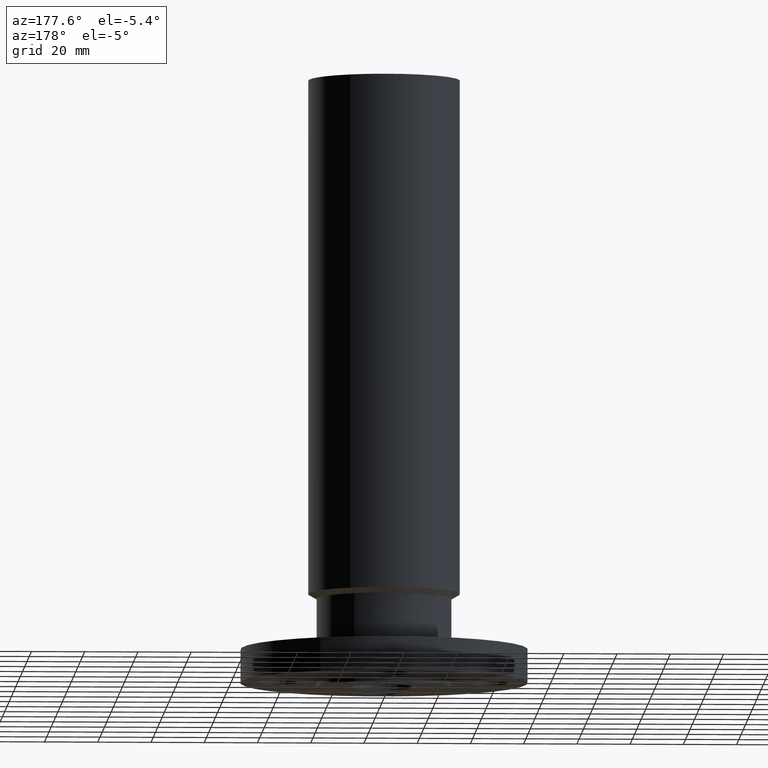
[diagram: clean part render]
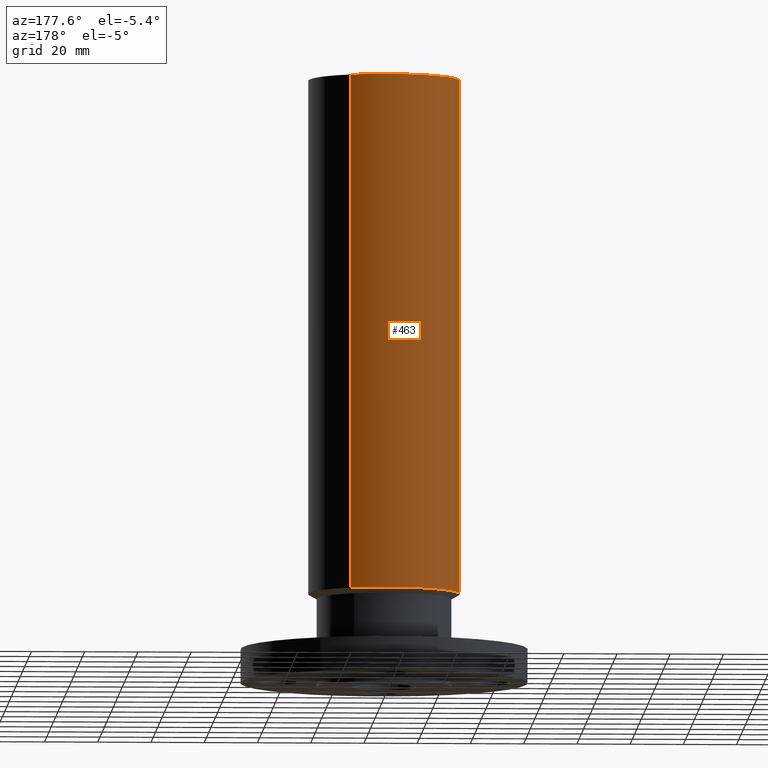
[diagram: same view with one face highlighted and labeled with its STEP entity id]
A machine part, auxiliary view. The second image highlights one B-rep face of the part: STEP entity #463.
In plain terms, the highlighted cylindrical surface (partial cylindrical patch) has radius 28.575 mm, axis along (0, 0, -1).
Its self-contained STEP definition (entity closure, byte-faithful):
#411=AXIS2_PLACEMENT_3D('Circle Axis2P3D',#409,#410,$) ;
#424=AXIS2_PLACEMENT_3D('Cylinder Axis2P3D',#421,#422,#423) ;
#454=AXIS2_PLACEMENT_3D('Circle Axis2P3D',#452,#453,$) ;
#387=CARTESIAN_POINT('Vertex',(0.539353730932,0.987280382131,1.31966878365)) ;
#394=CARTESIAN_POINT('Vertex',(-0.539353730932,-0.987280382131,1.31966878365)) ;
#409=CARTESIAN_POINT('Axis2P3D Location',(0.,0.,1.31966878365)) ;
#421=CARTESIAN_POINT('Axis2P3D Location',(0.,0.,4.43750000002)) ;
#426=CARTESIAN_POINT('Line Origine',(0.539353730932,0.987280382131,5.12858439184)) ;
#430=CARTESIAN_POINT('Vertex',(0.539353730932,0.987280382131,8.93750000004)) ;
#437=CARTESIAN_POINT('Vertex',(-0.539353730932,-0.987280382131,8.93750000004)) ;
#440=CARTESIAN_POINT('Line Origine',(-0.539353730932,-0.987280382131,5.12858439184)) ;
#452=CARTESIAN_POINT('Axis2P3D Location',(0.,0.,8.93750000004)) ;
#410=DIRECTION('Axis2P3D Direction',(-0.,0.,0.0393700787402)) ;
#422=DIRECTION('Axis2P3D Direction',(0.,0.,-0.0393700787402)) ;
#423=DIRECTION('Axis2P3D XDirection',(-0.0188750212049,-0.0345504945626,0.)) ;
#427=DIRECTION('Vector Direction',(0.,0.,-0.0393700787402)) ;
#441=DIRECTION('Vector Direction',(0.,0.,-0.0393700787402)) ;
#453=DIRECTION('Axis2P3D Direction',(0.,0.,-0.0393700787402)) ;
#428=VECTOR('Line Direction',#427,0.0393700787402) ;
#442=VECTOR('Line Direction',#441,0.0393700787402) ;
#458=ORIENTED_EDGE('',*,*,#413,.F.) ;
#459=ORIENTED_EDGE('',*,*,#444,.T.) ;
#460=ORIENTED_EDGE('',*,*,#456,.T.) ;
#461=ORIENTED_EDGE('',*,*,#432,.F.) ;
#463=ADVANCED_FACE('PartBody',(#462),#425,.T.) ;
#412=CIRCLE('generated circle',#411,1.125) ;
#455=CIRCLE('generated circle',#454,1.125) ;
#425=CYLINDRICAL_SURFACE('generated cylinder',#424,1.125) ;
#413=EDGE_CURVE('',#395,#388,#412,.F.) ;
#432=EDGE_CURVE('',#388,#431,#429,.F.) ;
#444=EDGE_CURVE('',#395,#438,#443,.F.) ;
#456=EDGE_CURVE('',#438,#431,#455,.T.) ;
#457=EDGE_LOOP('',(#458,#459,#460,#461)) ;
#462=FACE_OUTER_BOUND('',#457,.T.) ;
#429=LINE('Line',#426,#428) ;
#443=LINE('Line',#440,#442) ;
#388=VERTEX_POINT('',#387) ;
#395=VERTEX_POINT('',#394) ;
#431=VERTEX_POINT('',#430) ;
#438=VERTEX_POINT('',#437) ;